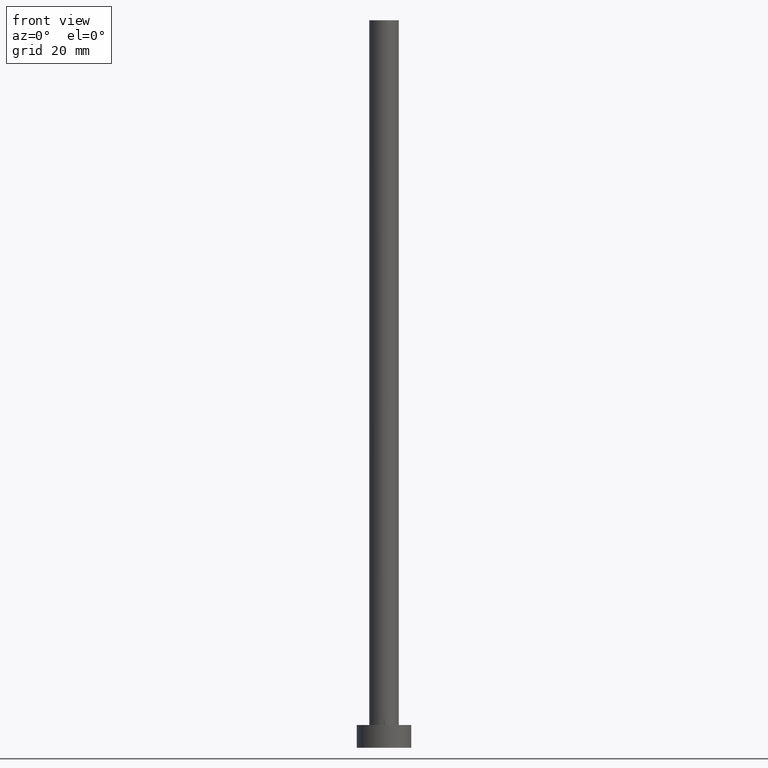
[diagram: clean part render]
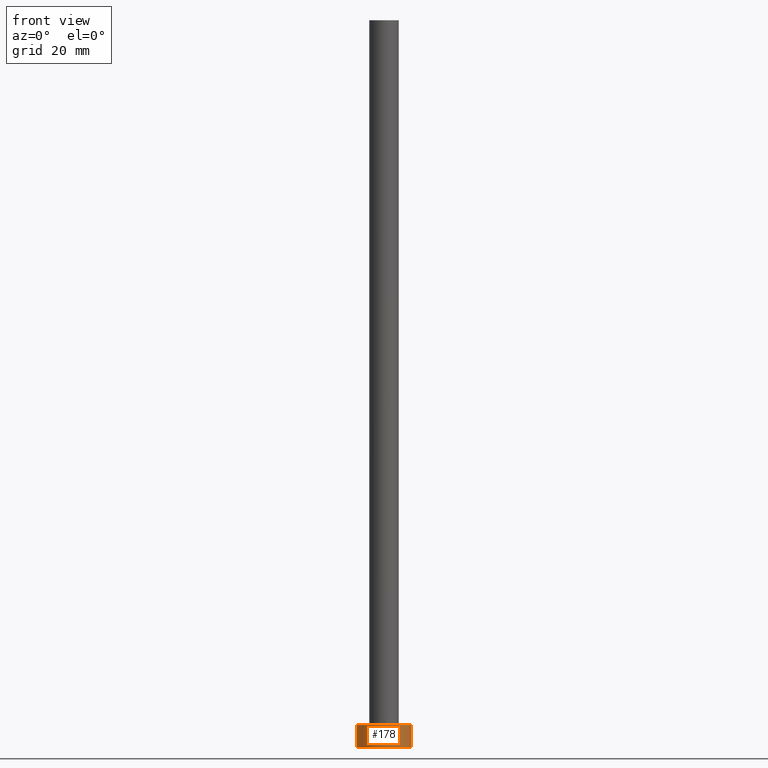
[diagram: same view with one face highlighted and labeled with its STEP entity id]
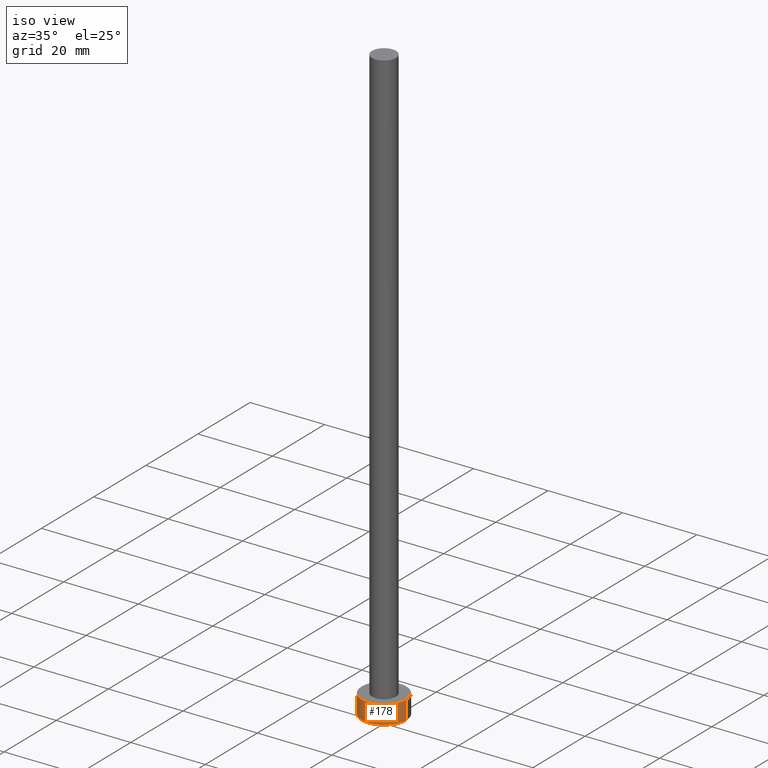
[diagram: same view with one face highlighted and labeled with its STEP entity id]
A machine part, front view. The second image highlights one B-rep face of the part: STEP entity #178.
A second angle (iso view) of the same face is appended — the face is thin or edge-on in the first view.
In plain terms, the highlighted cylindrical surface (edge-blend (fillet) strip) has radius 6 mm, axis along (-0, -0, -1).
Its self-contained STEP definition (entity closure, byte-faithful):
#22 = DIRECTION ( 'NONE',  ( -0.000000000000000000, -0.000000000000000000, -1.000000000000000000 ) ) ;
#26 = EDGE_CURVE ( 'NONE', #177, #214, #102, .T. ) ;
#38 = ORIENTED_EDGE ( 'NONE', *, *, #224, .T. ) ;
#47 = CARTESIAN_POINT ( 'NONE',  ( 6.000000000000000888, 7.347880794884120722E-16, 5.000000000000000000 ) ) ;
#50 = AXIS2_PLACEMENT_3D ( 'NONE', #100, #196, #59 ) ;
#59 = DIRECTION ( 'NONE',  ( 1.000000000000000000, 0.000000000000000000, 0.000000000000000000 ) ) ;
#65 = CARTESIAN_POINT ( 'NONE',  ( -6.000000000000000888, 0.000000000000000000, 5.000000000000000000 ) ) ;
#71 = AXIS2_PLACEMENT_3D ( 'NONE', #88, #198, #203 ) ;
#82 = DIRECTION ( 'NONE',  ( -0.000000000000000000, -0.000000000000000000, -1.000000000000000000 ) ) ;
#86 = DIRECTION ( 'NONE',  ( -1.000000000000000000, 0.000000000000000000, 0.000000000000000000 ) ) ;
#88 = CARTESIAN_POINT ( 'NONE',  ( 0.000000000000000000, 0.000000000000000000, 0.000000000000000000 ) ) ;
#92 = VECTOR ( 'NONE', #162, 1000.000000000000000 ) ;
#97 = VERTEX_POINT ( 'NONE', #175 ) ;
#100 = CARTESIAN_POINT ( 'NONE',  ( 0.000000000000000000, 0.000000000000000000, 5.000000000000000000 ) ) ;
#102 = CIRCLE ( 'NONE', #50, 6.000000000000000888 ) ;
#103 = CARTESIAN_POINT ( 'NONE',  ( 6.000000000000000888, 7.347880794884120722E-16, 5.000000000000000000 ) ) ;
#106 = CARTESIAN_POINT ( 'NONE',  ( 0.000000000000000000, 0.000000000000000000, 5.000000000000000000 ) ) ;
#119 = ORIENTED_EDGE ( 'NONE', *, *, #26, .F. ) ;
#127 = LINE ( 'NONE', #65, #172 ) ;
#131 = EDGE_CURVE ( 'NONE', #97, #209, #184, .T. ) ;
#143 = CYLINDRICAL_SURFACE ( 'NONE', #245, 6.000000000000000888 ) ;
#157 = ORIENTED_EDGE ( 'NONE', *, *, #207, .F. ) ;
#159 = CARTESIAN_POINT ( 'NONE',  ( 6.000000000000000888, 7.347880794884120722E-16, 0.000000000000000000 ) ) ;
#161 = LINE ( 'NONE', #103, #92 ) ;
#162 = DIRECTION ( 'NONE',  ( -0.000000000000000000, -0.000000000000000000, -1.000000000000000000 ) ) ;
#172 = VECTOR ( 'NONE', #22, 1000.000000000000000 ) ;
#173 = EDGE_LOOP ( 'NONE', ( #157, #119, #38, #191 ) ) ;
#175 = CARTESIAN_POINT ( 'NONE',  ( -6.000000000000000888, 0.000000000000000000, 0.000000000000000000 ) ) ;
#177 = VERTEX_POINT ( 'NONE', #200 ) ;
#178 = ADVANCED_FACE ( 'NONE', ( #185 ), #143, .T. ) ;
#184 = CIRCLE ( 'NONE', #71, 6.000000000000000888 ) ;
#185 = FACE_OUTER_BOUND ( 'NONE', #173, .T. ) ;
#191 = ORIENTED_EDGE ( 'NONE', *, *, #131, .T. ) ;
#196 = DIRECTION ( 'NONE',  ( 0.000000000000000000, 0.000000000000000000, 1.000000000000000000 ) ) ;
#198 = DIRECTION ( 'NONE',  ( 0.000000000000000000, 0.000000000000000000, 1.000000000000000000 ) ) ;
#200 = CARTESIAN_POINT ( 'NONE',  ( -6.000000000000000888, 0.000000000000000000, 5.000000000000000000 ) ) ;
#203 = DIRECTION ( 'NONE',  ( 1.000000000000000000, 0.000000000000000000, 0.000000000000000000 ) ) ;
#207 = EDGE_CURVE ( 'NONE', #214, #209, #161, .T. ) ;
#209 = VERTEX_POINT ( 'NONE', #159 ) ;
#214 = VERTEX_POINT ( 'NONE', #47 ) ;
#224 = EDGE_CURVE ( 'NONE', #177, #97, #127, .T. ) ;
#245 = AXIS2_PLACEMENT_3D ( 'NONE', #106, #82, #86 ) ;